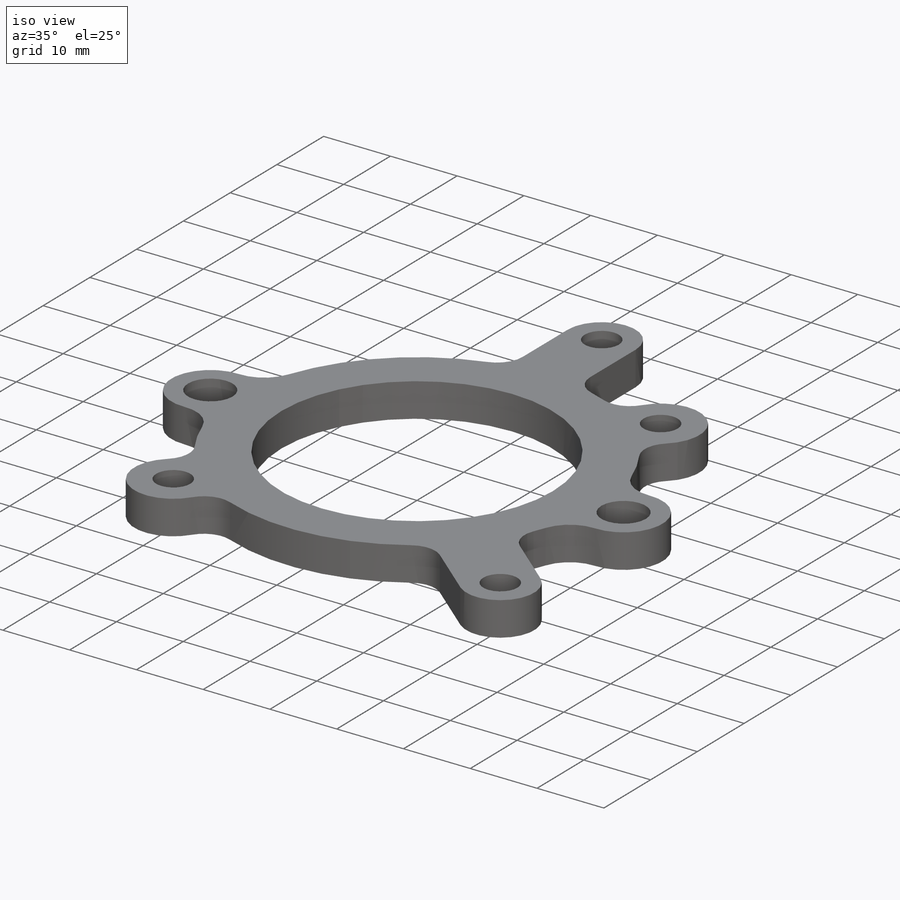
[diagram: iso view]
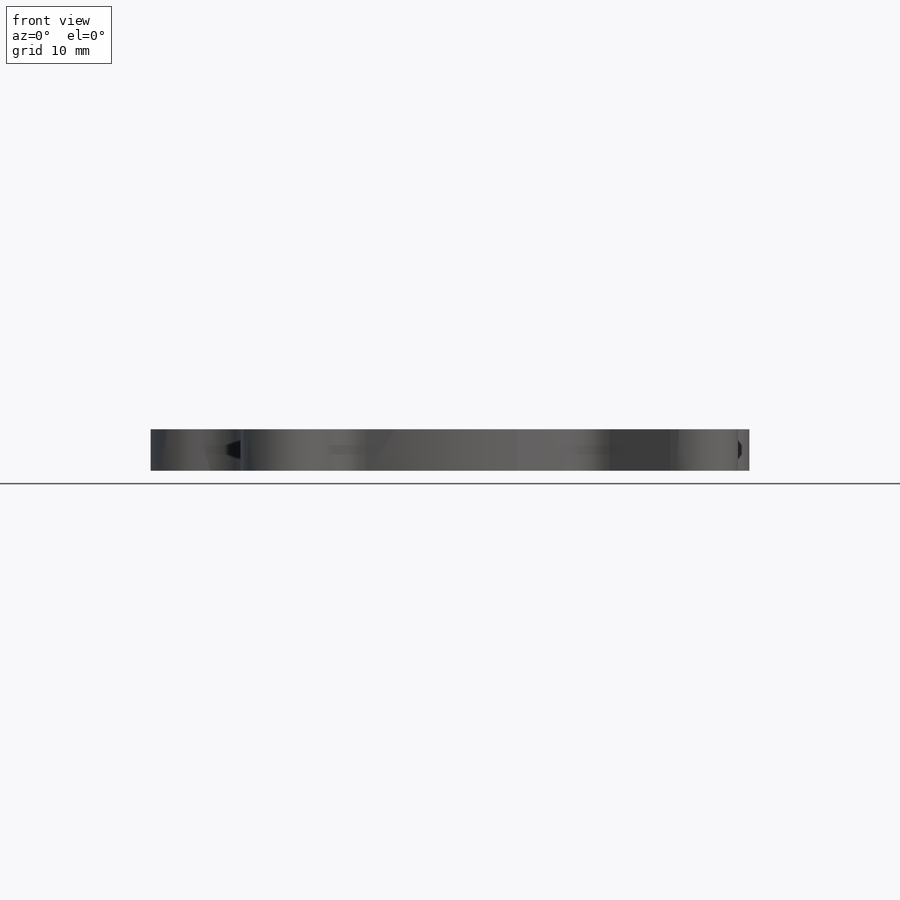
[diagram: front view]
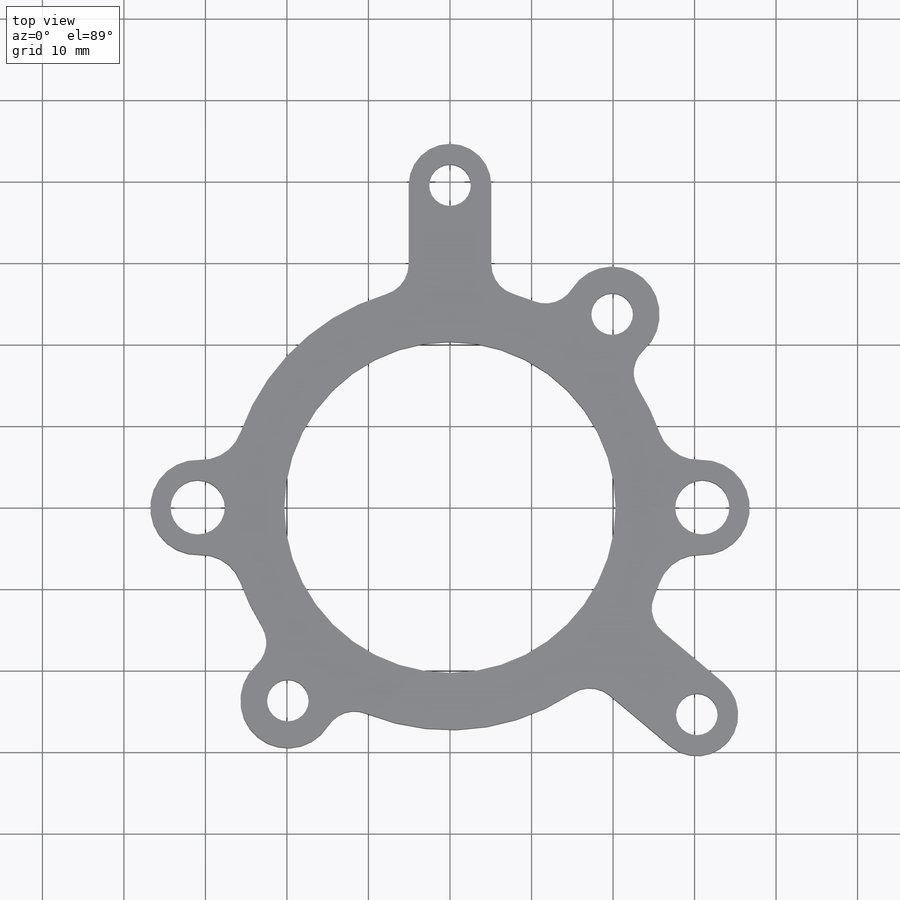
[diagram: top view]
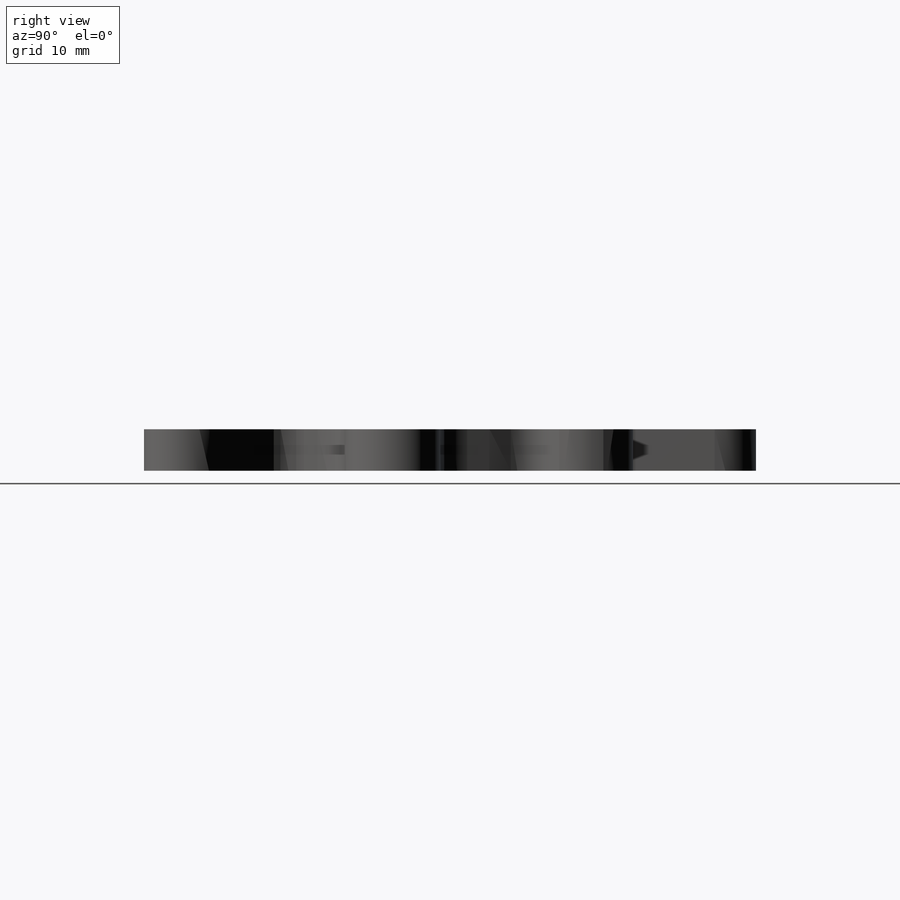
[diagram: right view]
SOLIDWORKS PART (.sldprt)
format: sldprt  version: not decoded by parser v0  size: 258,560 bytes
history: native  units: mm
features: thread x4, sketch x3, material x1, extrude x1, hole x1 (+16 scaffold rows collapsed)
feature tree (26):
  scaffold x16  (default folders/planes/origin — collapsed)
  material  "Material <not specified>"
  sketch  "Sketch1"  dims[c1.D1=40.64mm c1.D2=40.64mm c1.D3=~13.734876mm c1.D4=6.6548mm c1.D5=6.6548mm c1.D6=5.08mm c1.D8=3.81mm c1.D9=5.08mm c1.D13=3.81mm c1.D16=3.81mm c2.D2=6.985mm c2.D3=61.8998mm c2.D5=~2.497154mm c2.D7=~69.210374mm c3.D7=50.0deg c3.D8=61.8998mm c3.D10=~39.948604mm c4.D10=40.0deg c4.D11=10.16mm c4.D12=12.7mm c4.D14=10.16mm c4.D15=12.7mm]
  extrude  "Boss-Extrude1"  Depth=5.08mm
  hole  "1/4-20 Tapped Hole1"  Diameter=5.1054mm Depth=5.08mm
  sketch  "3DSketch1"
  sketch  "Sketch2"  dims[hole-wizard template sketch: 60 standard entries collapsed; hole parameters kept: c18.Thru Tap Drill Depth=5.08mm]
  thread  "Hole Thread1"  Diameter=6.35mm  [1 undecoded]
  thread  "Hole Thread2"  Diameter=6.35mm  [1 undecoded]
  thread  "Hole Thread3"  Diameter=6.35mm  [1 undecoded]
  thread  "Hole Thread4"  Diameter=6.35mm  [1 undecoded]
decode coverage: 8 of 9 modeling features carry decoded parameters
note: ~ marks probable driven/reference dimensions
note: 4 parameter values undecoded
note: suppression state not decoded; provenance and decode notes live in map.json
